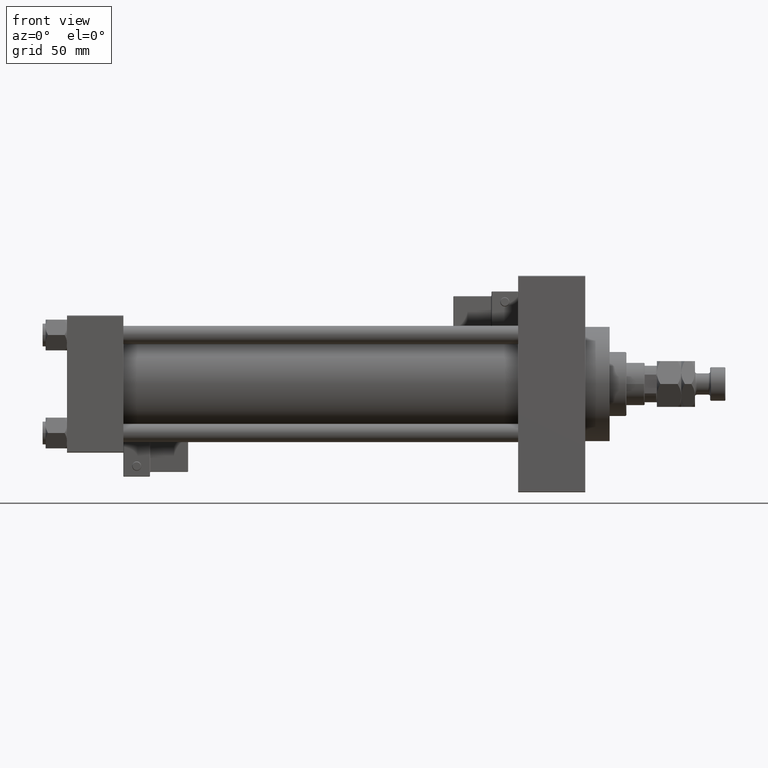
[diagram: clean part render]
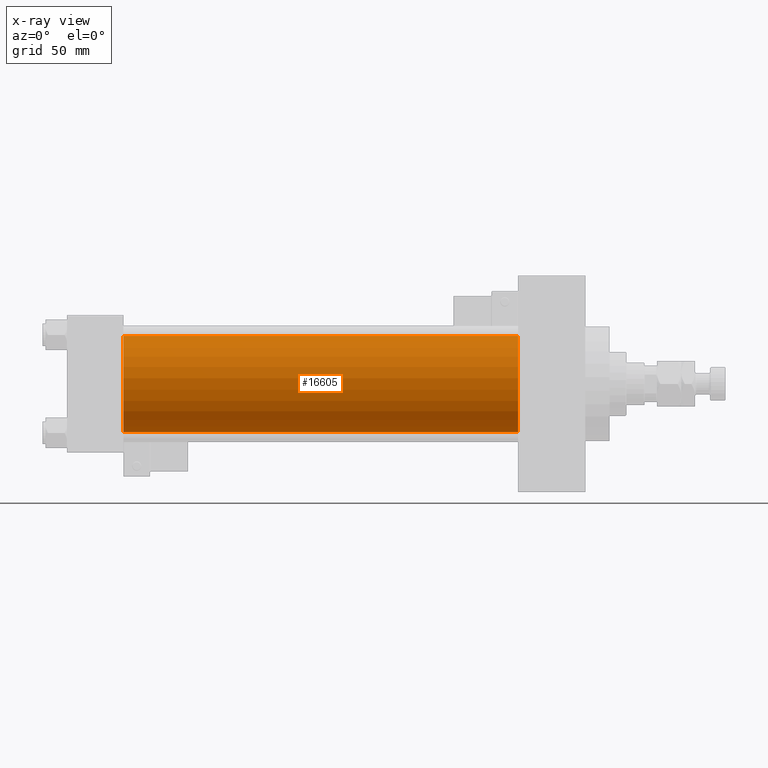
[diagram: x-ray — body ghosted, one internal face saturated and labeled with its STEP entity id]
A machine part, front view, then the same camera in x-ray: the body is ghosted and one INTERNAL B-rep face — a face not visible from any outside direction — is saturated and labeled: STEP entity #16605.
In plain terms, the highlighted cylindrical surface (partial cylindrical patch) has radius 31.5 mm, axis along (-1, -0, -0).
Its self-contained STEP definition (entity closure, byte-faithful):
#1596 = DIRECTION ( 'NONE',  ( 1.000000000000000000, 0.000000000000000000, 0.000000000000000000 ) ) ;
#2650 = VECTOR ( 'NONE', #33948, 1000.000000000000000 ) ;
#3257 = EDGE_CURVE ( 'NONE', #44584, #51883, #28314, .T. ) ;
#3352 = CARTESIAN_POINT ( 'NONE',  ( 296.0000000000000000, -2.602085213965210642E-15, 0.000000000000000000 ) ) ;
#4419 = DIRECTION ( 'NONE',  ( -1.000000000000000000, -0.000000000000000000, -0.000000000000000000 ) ) ;
#5622 = EDGE_CURVE ( 'NONE', #51883, #13225, #6008, .T. ) ;
#5742 = CARTESIAN_POINT ( 'NONE',  ( 37.00000000000000000, -2.602085213965210642E-15, 31.50000000000000000 ) ) ;
#6008 = LINE ( 'NONE', #17579, #2650 ) ;
#8346 = AXIS2_PLACEMENT_3D ( 'NONE', #3352, #32085, #39632 ) ;
#10497 = DIRECTION ( 'NONE',  ( 0.000000000000000000, 0.000000000000000000, -1.000000000000000000 ) ) ;
#11489 = EDGE_LOOP ( 'NONE', ( #30064, #13895, #48740, #24449 ) ) ;
#11647 = EDGE_CURVE ( 'NONE', #44584, #21490, #41236, .T. ) ;
#11942 = AXIS2_PLACEMENT_3D ( 'NONE', #50825, #38714, #10497 ) ;
#13225 = VERTEX_POINT ( 'NONE', #29522 ) ;
#13895 = ORIENTED_EDGE ( 'NONE', *, *, #5622, .T. ) ;
#16605 = ADVANCED_FACE ( 'NONE', ( #23765 ), #40174, .F. ) ;
#17579 = CARTESIAN_POINT ( 'NONE',  ( 296.0000000000000000, 1.255552203348951850E-15, -31.50000000000000000 ) ) ;
#19336 = CARTESIAN_POINT ( 'NONE',  ( 296.0000000000000000, 1.255552203348951850E-15, -31.50000000000000000 ) ) ;
#21490 = VERTEX_POINT ( 'NONE', #5742 ) ;
#21764 = CARTESIAN_POINT ( 'NONE',  ( 296.0000000000000000, -2.602085213965210642E-15, 0.000000000000000000 ) ) ;
#23765 = FACE_OUTER_BOUND ( 'NONE', #11489, .T. ) ;
#23962 = CIRCLE ( 'NONE', #11942, 31.50000000000000000 ) ;
#24399 = EDGE_CURVE ( 'NONE', #21490, #13225, #23962, .T. ) ;
#24449 = ORIENTED_EDGE ( 'NONE', *, *, #11647, .F. ) ;
#25371 = CARTESIAN_POINT ( 'NONE',  ( 296.0000000000000000, -2.602085213965210642E-15, 31.50000000000000000 ) ) ;
#28314 = CIRCLE ( 'NONE', #30857, 31.50000000000000000 ) ;
#29327 = CARTESIAN_POINT ( 'NONE',  ( 296.0000000000000000, -2.602085213965210642E-15, 31.50000000000000000 ) ) ;
#29522 = CARTESIAN_POINT ( 'NONE',  ( 37.00000000000000000, 1.255552203348951850E-15, -31.50000000000000000 ) ) ;
#30064 = ORIENTED_EDGE ( 'NONE', *, *, #3257, .T. ) ;
#30857 = AXIS2_PLACEMENT_3D ( 'NONE', #21764, #1596, #42185 ) ;
#32085 = DIRECTION ( 'NONE',  ( -1.000000000000000000, -0.000000000000000000, -0.000000000000000000 ) ) ;
#33948 = DIRECTION ( 'NONE',  ( -1.000000000000000000, -0.000000000000000000, -0.000000000000000000 ) ) ;
#38714 = DIRECTION ( 'NONE',  ( 1.000000000000000000, 0.000000000000000000, 0.000000000000000000 ) ) ;
#39632 = DIRECTION ( 'NONE',  ( 0.000000000000000000, 0.000000000000000000, 1.000000000000000000 ) ) ;
#40174 = CYLINDRICAL_SURFACE ( 'NONE', #8346, 31.50000000000000000 ) ;
#41236 = LINE ( 'NONE', #25371, #42269 ) ;
#42185 = DIRECTION ( 'NONE',  ( 0.000000000000000000, 0.000000000000000000, -1.000000000000000000 ) ) ;
#42269 = VECTOR ( 'NONE', #4419, 1000.000000000000000 ) ;
#44584 = VERTEX_POINT ( 'NONE', #29327 ) ;
#48740 = ORIENTED_EDGE ( 'NONE', *, *, #24399, .F. ) ;
#50825 = CARTESIAN_POINT ( 'NONE',  ( 37.00000000000000000, -2.602085213965210642E-15, 0.000000000000000000 ) ) ;
#51883 = VERTEX_POINT ( 'NONE', #19336 ) ;